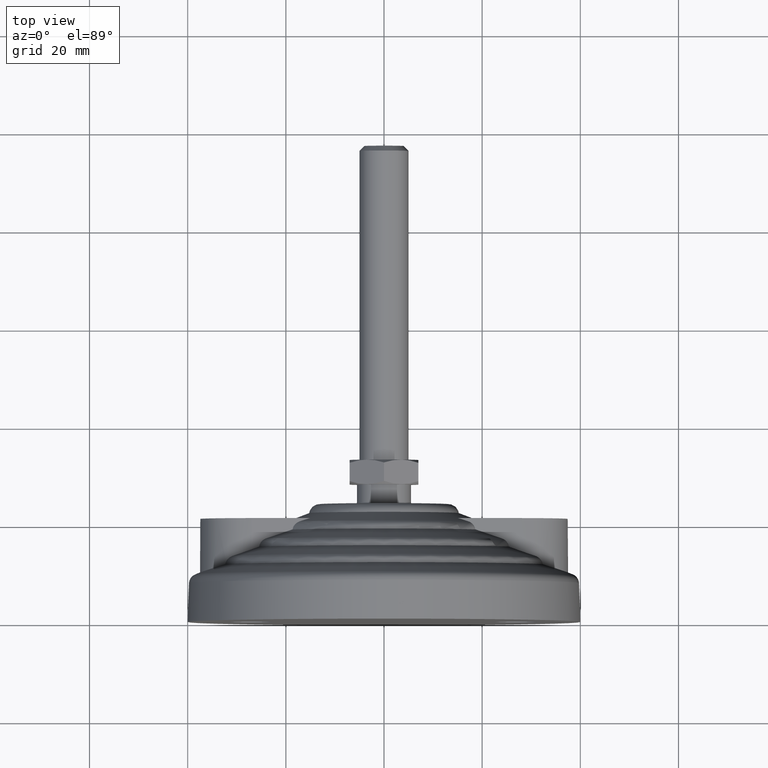
[diagram: clean part render]
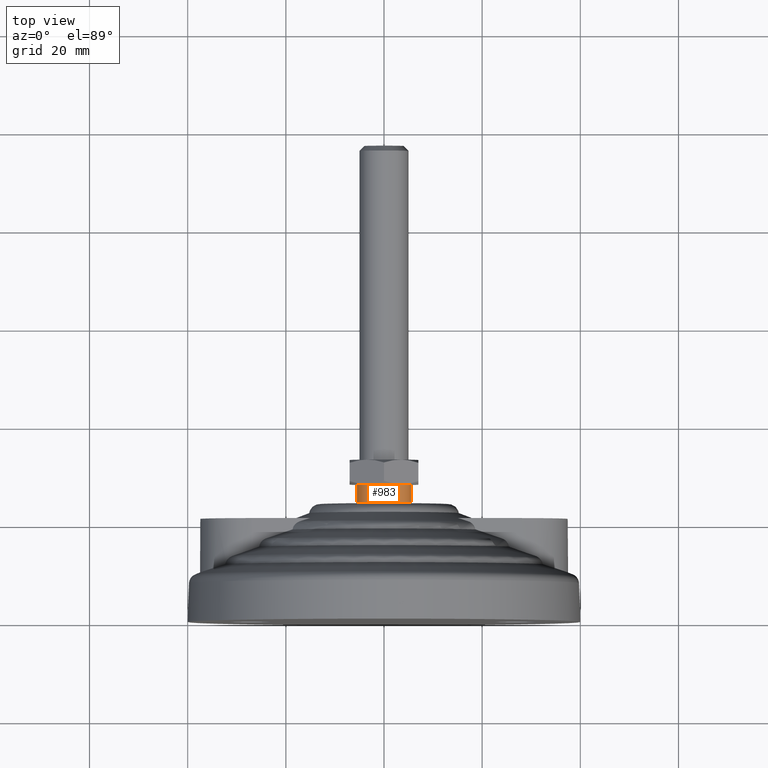
[diagram: same view with one face highlighted and labeled with its STEP entity id]
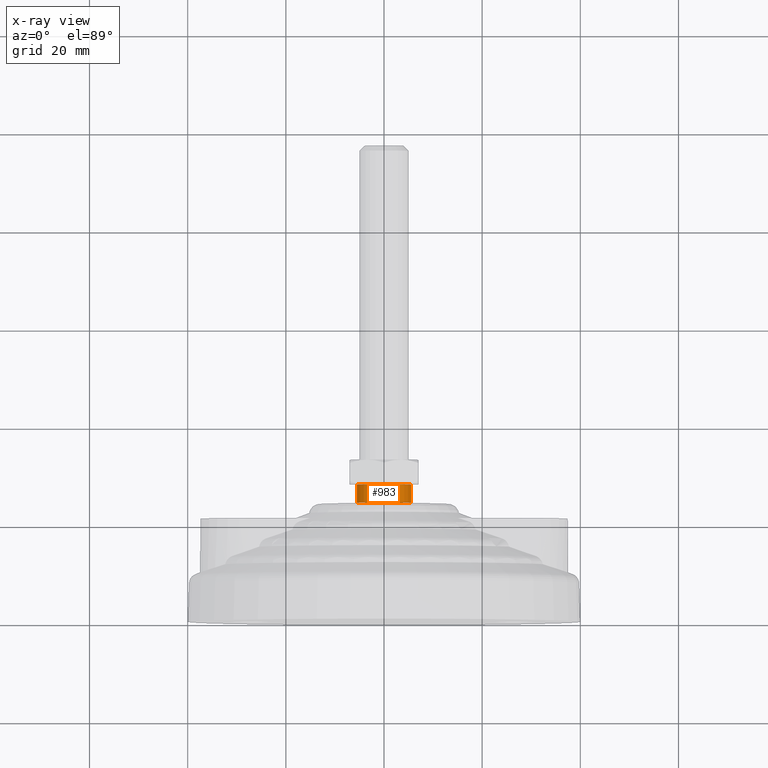
[diagram: x-ray of the same camera — body ghosted, the highlighted face saturated]
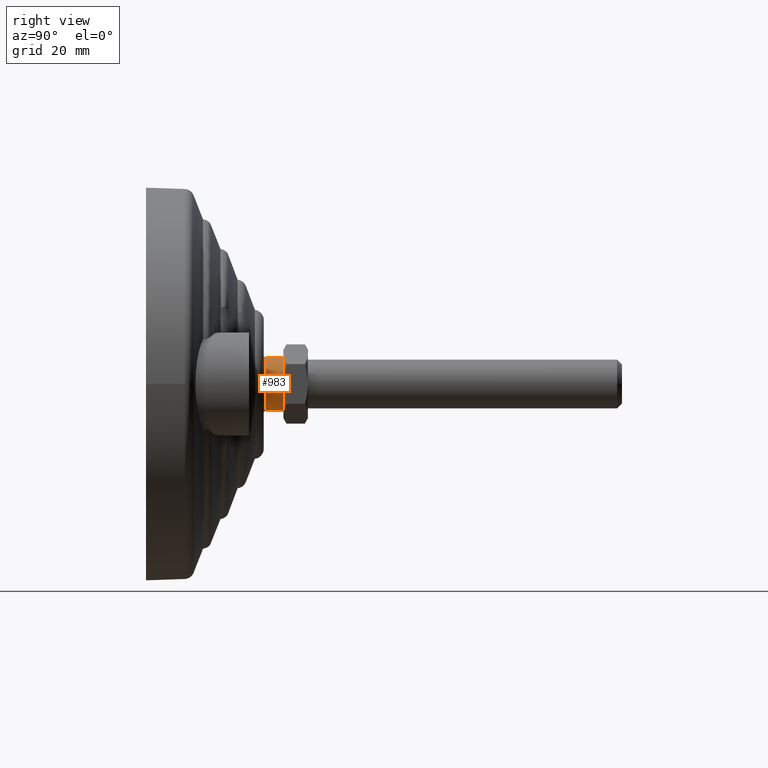
[diagram: same view with one face highlighted and labeled with its STEP entity id]
A machine part, top view. The second image highlights one B-rep face of the part: STEP entity #983.
The next image is the same camera in x-ray: the body ghosted, the highlighted face saturated — about 0% of this face is hidden behind the body in this view.
A second angle (right view) of the same face is appended — the face is thin or edge-on in the first view.
In plain terms, the highlighted cylindrical surface (bore or boss wall) has radius 5.5 mm, axis along (0, -1, 0).
Its self-contained STEP definition (entity closure, byte-faithful):
#191=FACE_OUTER_BOUND('',#253,.T.);
#253=EDGE_LOOP('',(#913,#914,#915,#916,#917,#918));
#279=LINE('',#2007,#303);
#303=VECTOR('',#1451,5.49999999999999);
#369=CIRCLE('',#1167,5.49999999999999);
#370=CIRCLE('',#1168,5.49999999999999);
#371=CIRCLE('',#1170,5.49999999999999);
#372=CIRCLE('',#1171,5.49999999999999);
#470=VERTEX_POINT('',#1998);
#471=VERTEX_POINT('',#1999);
#472=VERTEX_POINT('',#2003);
#473=VERTEX_POINT('',#2004);
#619=EDGE_CURVE('',#470,#471,#369,.T.);
#620=EDGE_CURVE('',#471,#470,#370,.T.);
#621=EDGE_CURVE('',#472,#473,#371,.T.);
#622=EDGE_CURVE('',#473,#472,#372,.T.);
#623=EDGE_CURVE('',#473,#471,#279,.T.);
#913=ORIENTED_EDGE('',*,*,#621,.F.);
#914=ORIENTED_EDGE('',*,*,#622,.F.);
#915=ORIENTED_EDGE('',*,*,#623,.T.);
#916=ORIENTED_EDGE('',*,*,#620,.T.);
#917=ORIENTED_EDGE('',*,*,#619,.T.);
#918=ORIENTED_EDGE('',*,*,#623,.F.);
#929=CYLINDRICAL_SURFACE('',#1169,5.49999999999999);
#983=ADVANCED_FACE('',(#191),#929,.T.);
#1167=AXIS2_PLACEMENT_3D('',#2000,#1441,#1442);
#1168=AXIS2_PLACEMENT_3D('',#2001,#1443,#1444);
#1169=AXIS2_PLACEMENT_3D('',#2002,#1445,#1446);
#1170=AXIS2_PLACEMENT_3D('',#2005,#1447,#1448);
#1171=AXIS2_PLACEMENT_3D('',#2006,#1449,#1450);
#1441=DIRECTION('center_axis',(3.13558628617819E-16,-1.,0.));
#1442=DIRECTION('ref_axis',(1.,3.13456360540168E-16,0.));
#1443=DIRECTION('center_axis',(3.13558628617819E-16,-1.,0.));
#1444=DIRECTION('ref_axis',(1.,3.13456360540168E-16,0.));
#1445=DIRECTION('center_axis',(3.13558628617819E-16,-1.,0.));
#1446=DIRECTION('ref_axis',(1.,3.13456360540168E-16,0.));
#1447=DIRECTION('center_axis',(3.13558628617819E-16,-1.,0.));
#1448=DIRECTION('ref_axis',(1.,3.13456360540168E-16,0.));
#1449=DIRECTION('center_axis',(3.13558628617819E-16,-1.,0.));
#1450=DIRECTION('ref_axis',(1.,3.13456360540168E-16,0.));
#1451=DIRECTION('',(-3.13558628617819E-16,1.,0.));
#1998=CARTESIAN_POINT('',(5.5,28.,0.));
#1999=CARTESIAN_POINT('',(-5.49999999999998,28.,-6.73555739531043E-16));
#2000=CARTESIAN_POINT('Origin',(9.52841890757975E-15,28.,0.));
#2001=CARTESIAN_POINT('Origin',(9.52841890757975E-15,28.,0.));
#2002=CARTESIAN_POINT('Origin',(1.0103779077154E-14,26.165063509461,0.));
#2003=CARTESIAN_POINT('',(5.5,24.330127018922,0.));
#2004=CARTESIAN_POINT('',(-5.49999999999998,24.330127018922,-6.73555739531043E-16));
#2005=CARTESIAN_POINT('Origin',(1.06791392467282E-14,24.330127018922,0.));
#2006=CARTESIAN_POINT('Origin',(1.06791392467282E-14,24.330127018922,0.));
#2007=CARTESIAN_POINT('',(-5.49999999999998,26.165063509461,-6.73555739531043E-16));